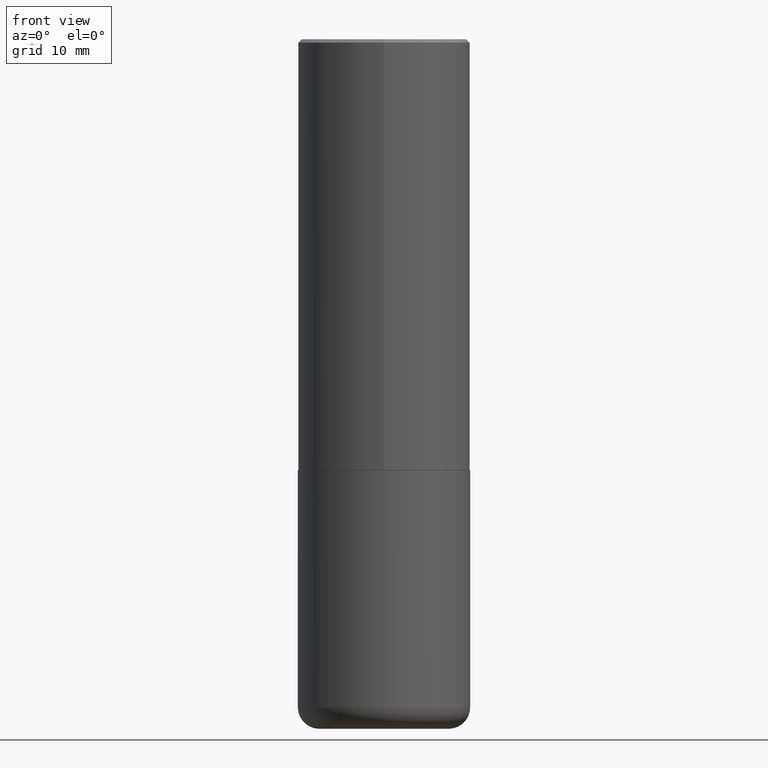
[diagram: clean part render]
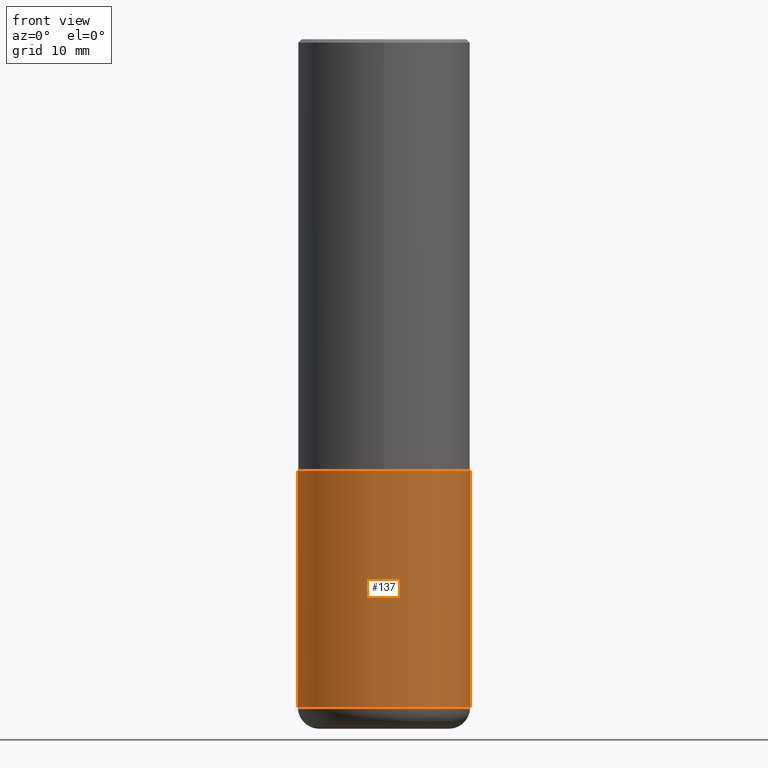
[diagram: same view with one face highlighted and labeled with its STEP entity id]
A machine part, front view. The second image highlights one B-rep face of the part: STEP entity #137.
In plain terms, the highlighted cylindrical surface (partial cylindrical patch) has radius 12.7 mm, axis along (-0, 0, 1).
Its self-contained STEP definition (entity closure, byte-faithful):
#26 = EDGE_LOOP ( 'NONE', ( #248, #400, #46, #314 ) ) ;
#37 = DIRECTION ( 'NONE',  ( -2.445468806185136597E-29, 3.491481338843145583E-15, 1.000000000000000000 ) ) ;
#38 = CARTESIAN_POINT ( 'NONE',  ( -0.5000000000000000000, 3.552713678800500929E-15, -2.459467545127452891E-29 ) ) ;
#46 = ORIENTED_EDGE ( 'NONE', *, *, #186, .T. ) ;
#51 = DIRECTION ( 'NONE',  ( -2.445468806185136597E-29, 3.491481338843145583E-15, 1.000000000000000000 ) ) ;
#55 = LINE ( 'NONE', #38, #384 ) ;
#66 = CARTESIAN_POINT ( 'NONE',  ( 0.5000000000000000000, -1.702097152686032086E-14, -3.875000000000000000 ) ) ;
#73 = VECTOR ( 'NONE', #369, 39.37007874015748143 ) ;
#75 = DIRECTION ( 'NONE',  ( -2.445468806185136597E-29, 3.491481338843145583E-15, 1.000000000000000000 ) ) ;
#82 = DIRECTION ( 'NONE',  ( -2.445468806185136877E-29, 3.491481338843145188E-15, 1.000000000000000000 ) ) ;
#107 = EDGE_CURVE ( 'NONE', #251, #401, #55, .T. ) ;
#137 = ADVANCED_FACE ( 'NONE', ( #293 ), #148, .T. ) ;
#142 = LINE ( 'NONE', #270, #73 ) ;
#144 = CARTESIAN_POINT ( 'NONE',  ( -0.5000000000000000000, -7.576383088762025295E-15, -2.500000000000000000 ) ) ;
#148 = CYLINDRICAL_SURFACE ( 'NONE', #174, 0.5000000000000000000 ) ;
#165 = VERTEX_POINT ( 'NONE', #66 ) ;
#166 = VERTEX_POINT ( 'NONE', #197 ) ;
#174 = AXIS2_PLACEMENT_3D ( 'NONE', #341, #51, #407 ) ;
#186 = EDGE_CURVE ( 'NONE', #165, #166, #142, .T. ) ;
#197 = CARTESIAN_POINT ( 'NONE',  ( 0.5000000000000000000, -1.222018468595099830E-14, -2.500000000000000000 ) ) ;
#201 = DIRECTION ( 'NONE',  ( 1.000000000000000000, -6.982962677686266711E-15, 0.000000000000000000 ) ) ;
#209 = CARTESIAN_POINT ( 'NONE',  ( 9.476191623967404313E-29, -1.352949018801718908E-14, -3.875000000000000000 ) ) ;
#227 = CARTESIAN_POINT ( 'NONE',  ( 6.113672015462842613E-29, -8.728703347107864943E-15, -2.500000000000000000 ) ) ;
#240 = AXIS2_PLACEMENT_3D ( 'NONE', #209, #37, #201 ) ;
#248 = ORIENTED_EDGE ( 'NONE', *, *, #107, .F. ) ;
#251 = VERTEX_POINT ( 'NONE', #333 ) ;
#270 = CARTESIAN_POINT ( 'NONE',  ( 0.5000000000000000000, -3.491481338843133355E-15, 2.438088387897967896E-29 ) ) ;
#276 = EDGE_CURVE ( 'NONE', #251, #165, #357, .T. ) ;
#282 = AXIS2_PLACEMENT_3D ( 'NONE', #227, #75, #416 ) ;
#293 = FACE_OUTER_BOUND ( 'NONE', #26, .T. ) ;
#297 = CIRCLE ( 'NONE', #282, 0.5000000000000000000 ) ;
#304 = EDGE_CURVE ( 'NONE', #401, #166, #297, .T. ) ;
#314 = ORIENTED_EDGE ( 'NONE', *, *, #304, .F. ) ;
#333 = CARTESIAN_POINT ( 'NONE',  ( -0.5000000000000000000, -9.976776509216686576E-15, -3.875000000000000000 ) ) ;
#341 = CARTESIAN_POINT ( 'NONE',  ( 0.000000000000000000, 0.000000000000000000, 0.000000000000000000 ) ) ;
#357 = CIRCLE ( 'NONE', #240, 0.5000000000000000000 ) ;
#369 = DIRECTION ( 'NONE',  ( -2.445468806185136877E-29, 3.491481338843145188E-15, 1.000000000000000000 ) ) ;
#384 = VECTOR ( 'NONE', #82, 39.37007874015748143 ) ;
#400 = ORIENTED_EDGE ( 'NONE', *, *, #276, .T. ) ;
#401 = VERTEX_POINT ( 'NONE', #144 ) ;
#407 = DIRECTION ( 'NONE',  ( 1.000000000000000000, -6.982962677686266711E-15, 4.876176775795935793E-29 ) ) ;
#416 = DIRECTION ( 'NONE',  ( 1.000000000000000000, -6.982962677686269077E-15, 0.000000000000000000 ) ) ;